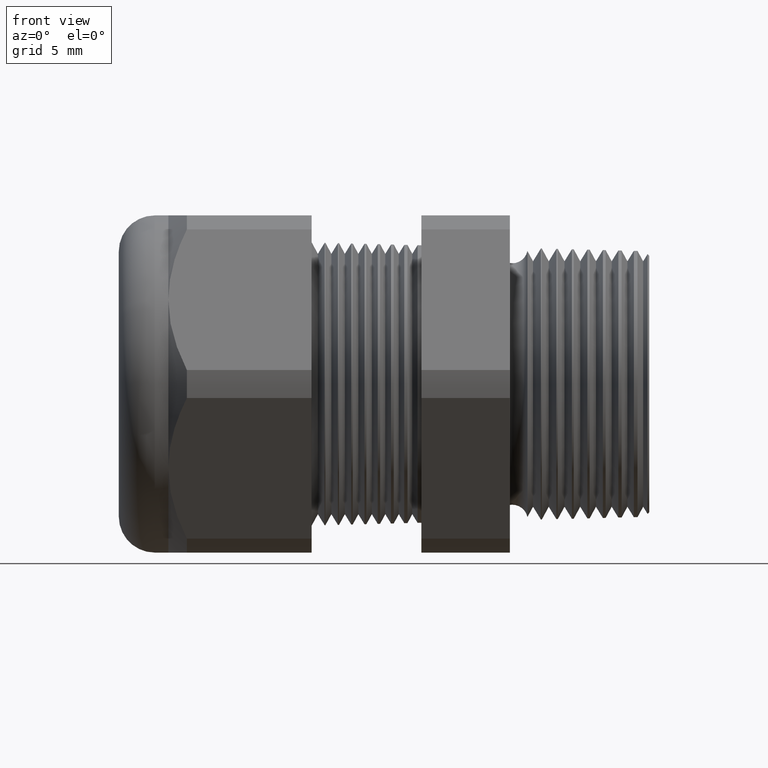
[diagram: clean part render]
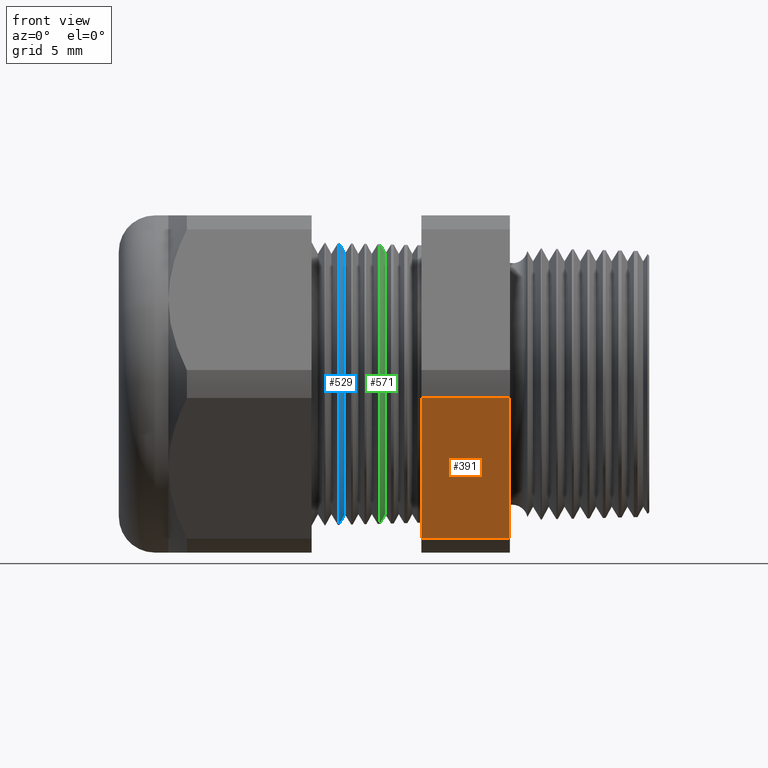
[diagram: same view with three faces highlighted in distinct colors, each labeled with its STEP entity id]
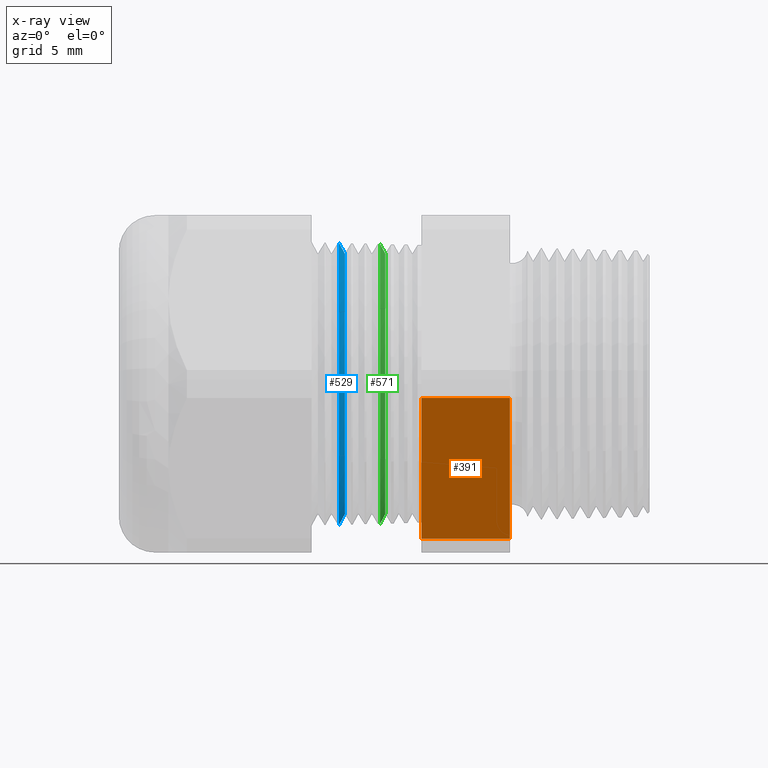
[diagram: x-ray of the same camera — body ghosted, the three highlighted faces saturated]
A machine part, front view with three faces highlighted in distinct colors.
The next image is the same camera in x-ray (body ghosted, the three faces saturated) — at least one of them is partly hidden behind the body in this view.
Their STEP definitions:

[orange] entity #391 — the highlighted planar face has unit normal (0, -0.866, -0.5).
#320 = EDGE_CURVE ( 'NONE', #336, #397, #1881, .T. ) ;
#335 = EDGE_CURVE ( 'NONE', #4179, #336, #1923, .T. ) ;
#336 = VERTEX_POINT ( 'NONE', #1914 ) ;
#391 = ADVANCED_FACE ( 'NONE', ( #2004 ), #2003, .T. ) ;
#392 = EDGE_LOOP ( 'NONE', ( #393, #394, #395, #398 ) ) ;
#393 = ORIENTED_EDGE ( 'NONE', *, *, #335, .F. ) ;
#394 = ORIENTED_EDGE ( 'NONE', *, *, #4195, .F. ) ;
#395 = ORIENTED_EDGE ( 'NONE', *, *, #396, .T. ) ;
#396 = EDGE_CURVE ( 'NONE', #4193, #397, #1998, .T. ) ;
#397 = VERTEX_POINT ( 'NONE', #2058 ) ;
#398 = ORIENTED_EDGE ( 'NONE', *, *, #320, .F. ) ;
#1878 = DIRECTION ( 'NONE',  ( 0.0000000000000000000, -0.5000000000000002200, 0.8660254037844384900 ) ) ;
#1879 = VECTOR ( 'NONE', #1878, 39.37007874015748900 ) ;
#1880 = CARTESIAN_POINT ( 'NONE',  ( -0.5068503937007874400, -0.1372595264191642800, -0.5122595264191648300 ) ) ;
#1881 = LINE ( 'NONE', #1880, #1879 ) ;
#1914 = CARTESIAN_POINT ( 'NONE',  ( -0.5068503937007874400, -0.2344281053908202100, -0.3439586107409880500 ) ) ;
#1915 = DIRECTION ( 'NONE',  ( -1.000000000000000000, 0.0000000000000000000, 0.0000000000000000000 ) ) ;
#1916 = VECTOR ( 'NONE', #1915, 39.37007874015748100 ) ;
#1917 = CARTESIAN_POINT ( 'NONE',  ( 0.0000000000000000000, -0.2344281053908202100, -0.3439586107409880500 ) ) ;
#1923 = LINE ( 'NONE', #1917, #1916 ) ;
#1995 = DIRECTION ( 'NONE',  ( -1.000000000000000000, 0.0000000000000000000, 0.0000000000000000000 ) ) ;
#1996 = VECTOR ( 'NONE', #1995, 39.37007874015748100 ) ;
#1997 = CARTESIAN_POINT ( 'NONE',  ( 0.0000000000000000000, -0.4150909474475088000, -0.03104138925901237000 ) ) ;
#1998 = LINE ( 'NONE', #1997, #1996 ) ;
#1999 = DIRECTION ( 'NONE',  ( 0.0000000000000000000, 0.5000000000000002200, -0.8660254037844384900 ) ) ;
#2000 = DIRECTION ( 'NONE',  ( 0.0000000000000000000, -0.8660254037844386000, -0.5000000000000003300 ) ) ;
#2001 = CARTESIAN_POINT ( 'NONE',  ( 0.0000000000000000000, -0.2344281053908202900, -0.3439586107409879900 ) ) ;
#2002 = AXIS2_PLACEMENT_3D ( 'NONE', #2001, #2000, #1999 ) ;
#2003 = PLANE ( 'NONE',  #2002 ) ;
#2004 = FACE_OUTER_BOUND ( 'NONE', #392, .T. ) ;
#2058 = CARTESIAN_POINT ( 'NONE',  ( -0.5068503937007874400, -0.4150909474475088000, -0.03104138925901237000 ) ) ;
#3584 = CARTESIAN_POINT ( 'NONE',  ( -0.3100000000000000000, -0.2344281053908202100, -0.3439586107409880500 ) ) ;
#3622 = DIRECTION ( 'NONE',  ( 0.0000000000000000000, 0.5000000000000002200, -0.8660254037844384900 ) ) ;
#3623 = VECTOR ( 'NONE', #3622, 39.37007874015748900 ) ;
#3624 = CARTESIAN_POINT ( 'NONE',  ( -0.3100000000000000000, -0.1372595264191642800, -0.5122595264191648300 ) ) ;
#3625 = LINE ( 'NONE', #3624, #3623 ) ;
#3626 = CARTESIAN_POINT ( 'NONE',  ( -0.3100000000000000000, -0.4150909474475088000, -0.03104138925901237000 ) ) ;
#4179 = VERTEX_POINT ( 'NONE', #3584 ) ;
#4193 = VERTEX_POINT ( 'NONE', #3626 ) ;
#4195 = EDGE_CURVE ( 'NONE', #4193, #4179, #3625, .T. ) ;

[blue] entity #529 — the highlighted conical surface has half-angle 61.5 deg.
#529 = ADVANCED_FACE ( 'NONE', ( #2171 ), #2166, .T. ) ;
#530 = EDGE_LOOP ( 'NONE', ( #531, #532, #584, #585 ) ) ;
#531 = ORIENTED_EDGE ( 'NONE', *, *, #1288, .F. ) ;
#532 = ORIENTED_EDGE ( 'NONE', *, *, #533, .F. ) ;
#533 = EDGE_CURVE ( 'NONE', #1294, #1239, #2160, .T. ) ;
#584 = ORIENTED_EDGE ( 'NONE', *, *, #713, .T. ) ;
#585 = ORIENTED_EDGE ( 'NONE', *, *, #4273, .T. ) ;
#710 = VERTEX_POINT ( 'NONE', #2443 ) ;
#713 = EDGE_CURVE ( 'NONE', #1294, #710, #2435, .T. ) ;
#1239 = VERTEX_POINT ( 'NONE', #3374 ) ;
#1283 = VERTEX_POINT ( 'NONE', #3442 ) ;
#1288 = EDGE_CURVE ( 'NONE', #1239, #1283, #3441, .T. ) ;
#1294 = VERTEX_POINT ( 'NONE', #3477 ) ;
#2158 = DIRECTION ( 'NONE',  ( 1.000000000000000000, 0.0000000000000000000, 0.0000000000000000000 ) ) ;
#2159 = AXIS2_PLACEMENT_3D ( 'NONE', #2165, #2158, #2221 ) ;
#2160 = CIRCLE ( 'NONE', #2159, 0.2896307351718083200 ) ;
#2161 = DIRECTION ( 'NONE',  ( 0.0000000000000000000, 0.0000000000000000000, 1.000000000000000000 ) ) ;
#2162 = DIRECTION ( 'NONE',  ( -1.000000000000000000, 0.0000000000000000000, 0.0000000000000000000 ) ) ;
#2163 = CARTESIAN_POINT ( 'NONE',  ( -0.6908661417322834500, 0.0000000000000000000, 0.0000000000000000000 ) ) ;
#2164 = AXIS2_PLACEMENT_3D ( 'NONE', #2163, #2162, #2161 ) ;
#2165 = CARTESIAN_POINT ( 'NONE',  ( -0.6770917547981794000, 0.0000000000000000000, 0.0000000000000000000 ) ) ;
#2166 = CONICAL_SURFACE ( 'NONE', #2164, 0.3150000000000000000, 1.073377489976500100 ) ;
#2171 = FACE_OUTER_BOUND ( 'NONE', #530, .T. ) ;
#2221 = DIRECTION ( 'NONE',  ( 0.0000000000000000000, 0.0000000000000000000, -1.000000000000000000 ) ) ;
#2428 = DIRECTION ( 'NONE',  ( -0.4771587602596195100, 0.0000000000000000000, 0.8788171126619593900 ) ) ;
#2429 = VECTOR ( 'NONE', #2428, 39.37007874015748100 ) ;
#2430 = CARTESIAN_POINT ( 'NONE',  ( -0.6908661417322834500, 0.0000000000000000000, 0.3150000000000000000 ) ) ;
#2435 = LINE ( 'NONE', #2430, #2429 ) ;
#2443 = CARTESIAN_POINT ( 'NONE',  ( -0.6900007703368915600, 0.0000000000000000000, 0.3134061841583612500 ) ) ;
#3374 = CARTESIAN_POINT ( 'NONE',  ( -0.6770917547981794000, 3.692536165126864400E-017, -0.2896307351718083200 ) ) ;
#3441 = LINE ( 'NONE', #3496, #3495 ) ;
#3442 = CARTESIAN_POINT ( 'NONE',  ( -0.6900007703368915600, 3.838516700581162200E-017, -0.3134061841583612500 ) ) ;
#3477 = CARTESIAN_POINT ( 'NONE',  ( -0.6770917547981794000, 0.0000000000000000000, 0.2896307351718083200 ) ) ;
#3494 = DIRECTION ( 'NONE',  ( -0.4771587602596195100, 1.076240564057387400E-016, -0.8788171126619593900 ) ) ;
#3495 = VECTOR ( 'NONE', #3494, 39.37007874015748100 ) ;
#3496 = CARTESIAN_POINT ( 'NONE',  ( -0.6908661417322834500, 3.857637417314162700E-017, -0.3150000000000000000 ) ) ;
#3774 = DIRECTION ( 'NONE',  ( 0.0000000000000000000, 0.0000000000000000000, 1.000000000000000000 ) ) ;
#3775 = DIRECTION ( 'NONE',  ( 1.000000000000000000, 0.0000000000000000000, 0.0000000000000000000 ) ) ;
#3776 = CARTESIAN_POINT ( 'NONE',  ( -0.6900007703368915600, 0.0000000000000000000, 0.0000000000000000000 ) ) ;
#3777 = AXIS2_PLACEMENT_3D ( 'NONE', #3776, #3775, #3774 ) ;
#3778 = CIRCLE ( 'NONE', #3777, 0.3134061841583612500 ) ;
#4273 = EDGE_CURVE ( 'NONE', #710, #1283, #3778, .T. ) ;

[green] entity #571 — the highlighted conical surface has half-angle 61.5 deg.
#571 = ADVANCED_FACE ( 'NONE', ( #2246 ), #2241, .T. ) ;
#572 = EDGE_LOOP ( 'NONE', ( #626, #627, #629, #630 ) ) ;
#626 = ORIENTED_EDGE ( 'NONE', *, *, #1178, .F. ) ;
#627 = ORIENTED_EDGE ( 'NONE', *, *, #628, .F. ) ;
#628 = EDGE_CURVE ( 'NONE', #1164, #1163, #2314, .T. ) ;
#629 = ORIENTED_EDGE ( 'NONE', *, *, #1250, .T. ) ;
#630 = ORIENTED_EDGE ( 'NONE', *, *, #4239, .T. ) ;
#1163 = VERTEX_POINT ( 'NONE', #3272 ) ;
#1164 = VERTEX_POINT ( 'NONE', #3271 ) ;
#1178 = EDGE_CURVE ( 'NONE', #1163, #1179, #3253, .T. ) ;
#1179 = VERTEX_POINT ( 'NONE', #3308 ) ;
#1245 = VERTEX_POINT ( 'NONE', #3424 ) ;
#1250 = EDGE_CURVE ( 'NONE', #1164, #1245, #3416, .T. ) ;
#2236 = DIRECTION ( 'NONE',  ( 0.0000000000000000000, 0.0000000000000000000, 1.000000000000000000 ) ) ;
#2237 = DIRECTION ( 'NONE',  ( -1.000000000000000000, 0.0000000000000000000, 0.0000000000000000000 ) ) ;
#2238 = CARTESIAN_POINT ( 'NONE',  ( -0.6008661417322833700, 0.0000000000000000000, 0.0000000000000000000 ) ) ;
#2239 = AXIS2_PLACEMENT_3D ( 'NONE', #2238, #2237, #2236 ) ;
#2241 = CONICAL_SURFACE ( 'NONE', #2239, 0.3150000000000000000, 1.073377489976500100 ) ;
#2246 = FACE_OUTER_BOUND ( 'NONE', #572, .T. ) ;
#2306 = DIRECTION ( 'NONE',  ( 0.0000000000000000000, 0.0000000000000000000, -1.000000000000000000 ) ) ;
#2307 = DIRECTION ( 'NONE',  ( 1.000000000000000000, 0.0000000000000000000, 0.0000000000000000000 ) ) ;
#2308 = CARTESIAN_POINT ( 'NONE',  ( -0.5870917547981794300, 0.0000000000000000000, 0.0000000000000000000 ) ) ;
#2309 = AXIS2_PLACEMENT_3D ( 'NONE', #2308, #2307, #2306 ) ;
#2314 = CIRCLE ( 'NONE', #2309, 0.2896307351718083200 ) ;
#2482 = DIRECTION ( 'NONE',  ( -0.4771587602596195100, 1.076240564057387400E-016, -0.8788171126619593900 ) ) ;
#3246 = VECTOR ( 'NONE', #2482, 39.37007874015748100 ) ;
#3247 = CARTESIAN_POINT ( 'NONE',  ( -0.6008661417322833700, 3.857637417314162700E-017, -0.3150000000000000000 ) ) ;
#3253 = LINE ( 'NONE', #3247, #3246 ) ;
#3271 = CARTESIAN_POINT ( 'NONE',  ( -0.5870917547981794300, 0.0000000000000000000, 0.2896307351718083200 ) ) ;
#3272 = CARTESIAN_POINT ( 'NONE',  ( -0.5870917547981794300, 3.677897204110165000E-017, -0.2896307351718083200 ) ) ;
#3308 = CARTESIAN_POINT ( 'NONE',  ( -0.5987027132438038600, 3.809674822999212900E-017, -0.3110154603959031600 ) ) ;
#3413 = DIRECTION ( 'NONE',  ( -0.4771587602596195100, 0.0000000000000000000, 0.8788171126619593900 ) ) ;
#3414 = VECTOR ( 'NONE', #3413, 39.37007874015748100 ) ;
#3415 = CARTESIAN_POINT ( 'NONE',  ( -0.6008661417322833700, 0.0000000000000000000, 0.3150000000000000000 ) ) ;
#3416 = LINE ( 'NONE', #3415, #3414 ) ;
#3424 = CARTESIAN_POINT ( 'NONE',  ( -0.5987027132438038600, 0.0000000000000000000, 0.3110154603959031600 ) ) ;
#3708 = AXIS2_PLACEMENT_3D ( 'NONE', #3768, #3767, #3766 ) ;
#3709 = CIRCLE ( 'NONE', #3708, 0.3110154603959031600 ) ;
#3766 = DIRECTION ( 'NONE',  ( 0.0000000000000000000, 0.0000000000000000000, 1.000000000000000000 ) ) ;
#3767 = DIRECTION ( 'NONE',  ( 1.000000000000000000, 0.0000000000000000000, 0.0000000000000000000 ) ) ;
#3768 = CARTESIAN_POINT ( 'NONE',  ( -0.5987027132438038600, 0.0000000000000000000, 0.0000000000000000000 ) ) ;
#4239 = EDGE_CURVE ( 'NONE', #1245, #1179, #3709, .T. ) ;